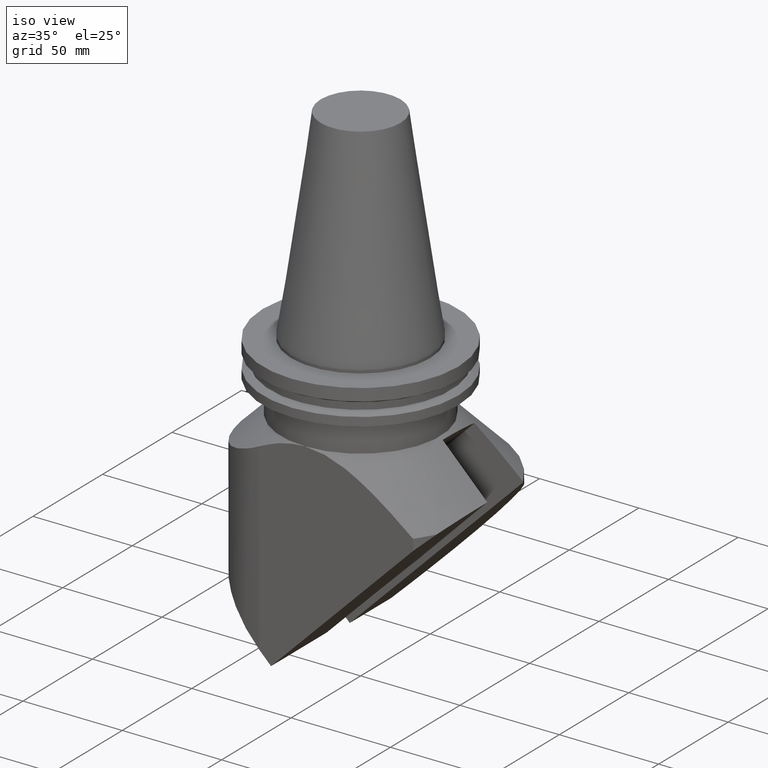
[diagram: clean part render]
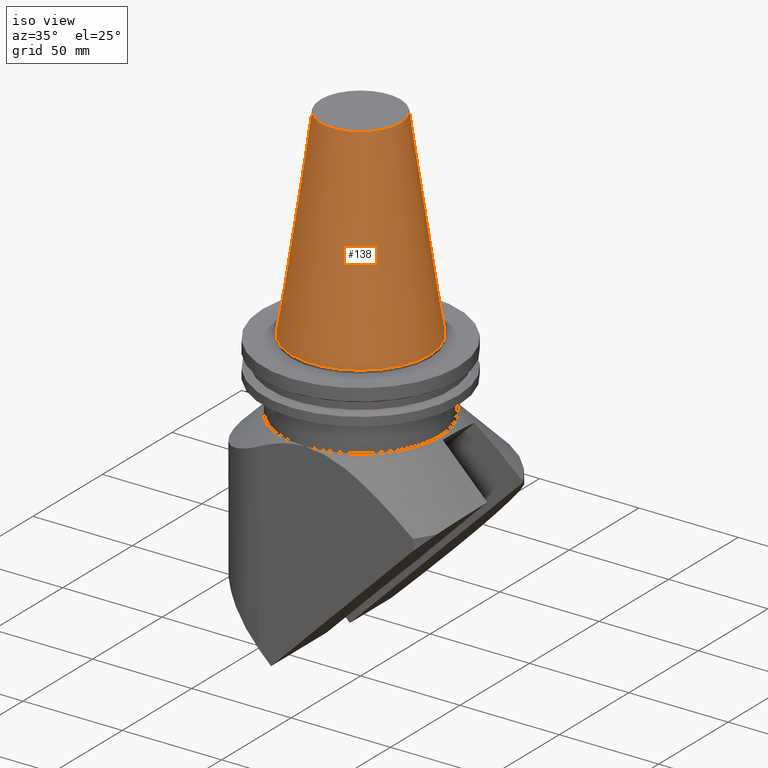
[diagram: same view with one face highlighted and labeled with its STEP entity id]
A machine part, iso view. The second image highlights one B-rep face of the part: STEP entity #138.
In plain terms, the highlighted conical surface has half-angle 8.297 deg.
Its self-contained STEP definition (entity closure, byte-faithful):
#138=ADVANCED_FACE('Unnamed[1]',(#374,#375),#376,.T.);
#169=EDGE_CURVE('Unnamed[1]',#424,#424,#425,.T.);
#304=EDGE_CURVE('Unnamed[1]',#601,#601,#602,.T.);
#374=FACE_BOUND('',#687,.T.);
#375=FACE_BOUND('',#688,.T.);
#376=CONICAL_SURFACE('',#689,27.5166666648608,0.144812498273746);
#424=VERTEX_POINT('',#767);
#425=CIRCLE('',#768,20.1083333297217);
#601=VERTEX_POINT('',#1084);
#602=CIRCLE('',#1085,34.925);
#687=EDGE_LOOP('',(#1156));
#688=EDGE_LOOP('',(#1157));
#689=AXIS2_PLACEMENT_3D('',#1158,#1159,#1160);
#767=CARTESIAN_POINT('',(-20.1083333297218,3.14896257201811E-014,101.6));
#768=AXIS2_PLACEMENT_3D('',#1205,#1206,#1207);
#1084=CARTESIAN_POINT('',(-34.9250000000017,1.55098156540143E-014,5.61620295307629E-013));
#1085=AXIS2_PLACEMENT_3D('',#1414,#1415,#1416);
#1156=ORIENTED_EDGE('',*,*,#304,.F.);
#1157=ORIENTED_EDGE('',*,*,#169,.T.);
#1158=CARTESIAN_POINT('',(-8.84435598998019E-013,1.1279865930192E-014,50.8));
#1159=DIRECTION('',(-1.60807529078777E-014,-2.22044604925024E-016,-1.0));
#1160=DIRECTION('',(-1.0,4.44089209850066E-016,1.60807529078777E-014));
#1205=CARTESIAN_POINT('',(-6.75333512778309E-014,2.25597318603832E-014,101.6));
#1206=DIRECTION('',(-1.60807529078777E-014,-2.22044604925024E-016,-1.0));
#1207=DIRECTION('',(-1.0,4.44089209850066E-016,1.60807529078777E-014));
#1414=CARTESIAN_POINT('',(-1.70133784671821E-012,7.55545780037095E-028,-2.0835379482517E-028));
#1415=DIRECTION('',(-1.60807529078777E-014,-2.22044604925024E-016,-1.0));
#1416=DIRECTION('',(-1.0,4.44089209850066E-016,1.60807529078777E-014));